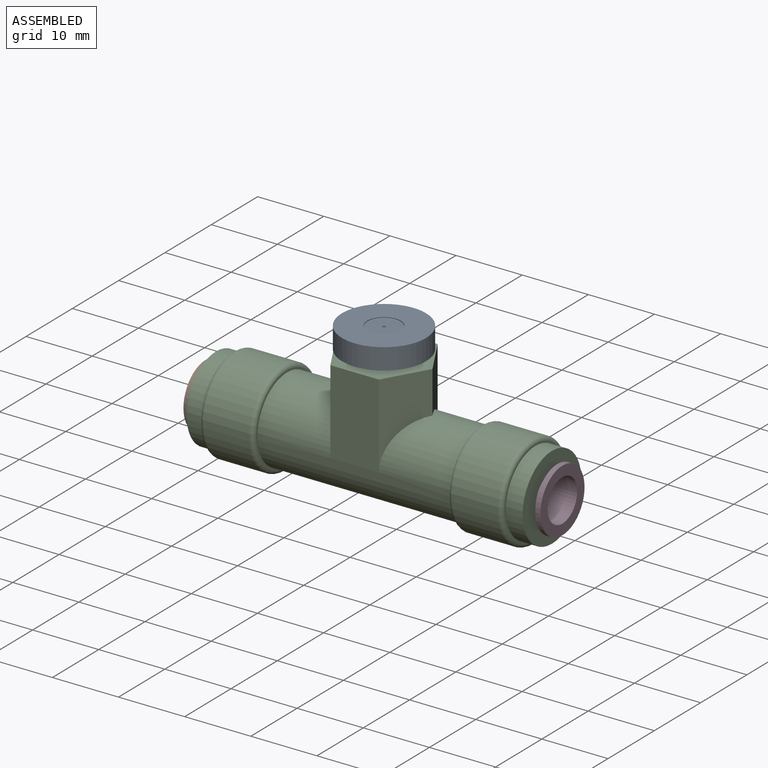
[diagram: assembled view]
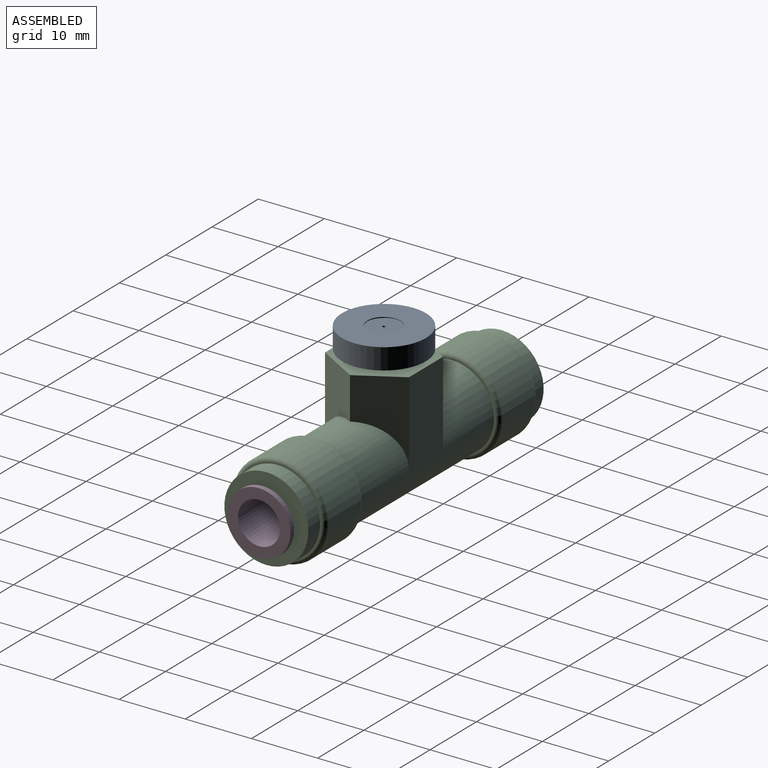
[diagram: assembled view, second angle]
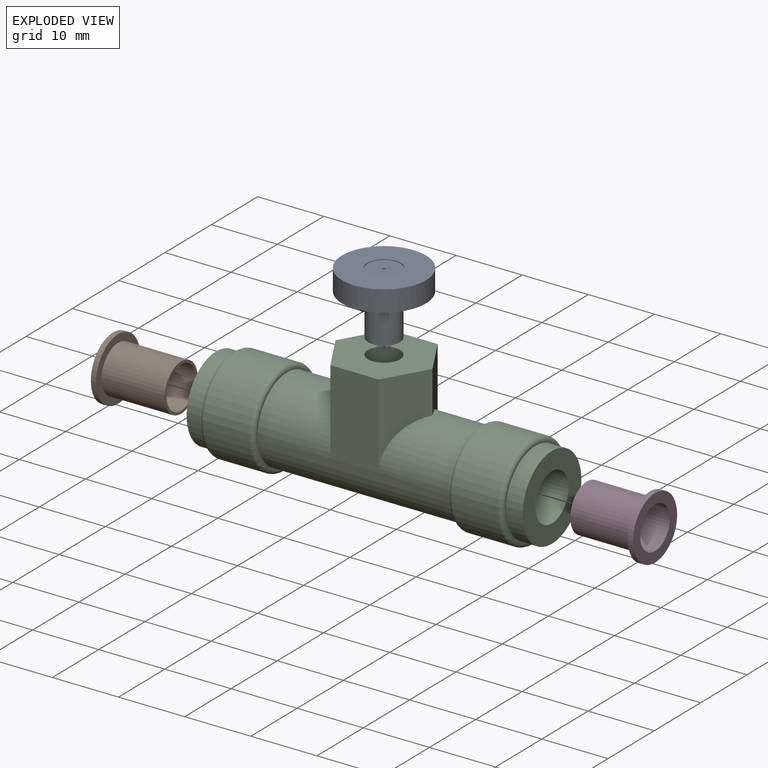
[diagram: exploded view]
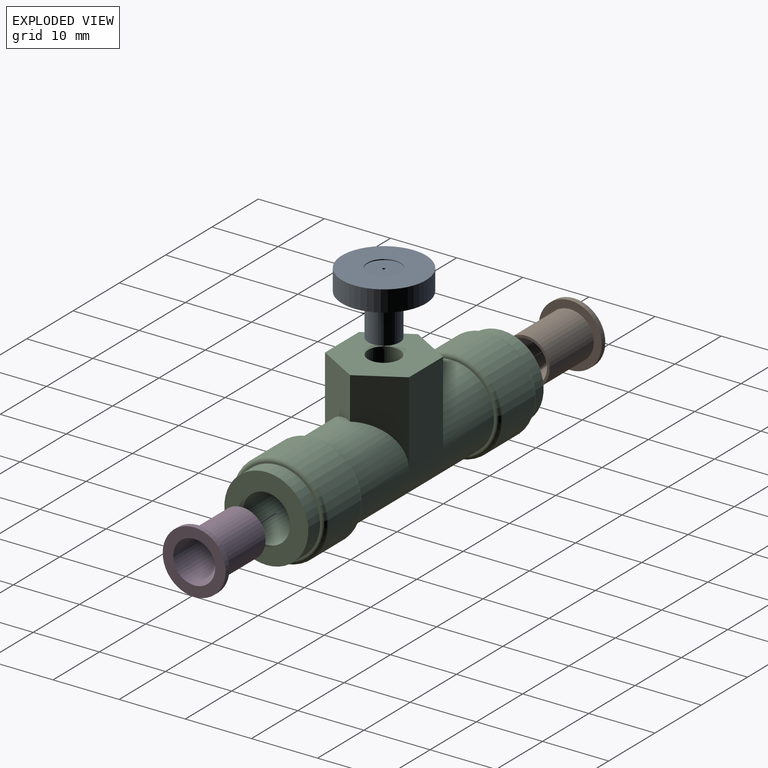
[diagram: exploded view, second angle]
ASSEMBLY  parts=4 mates=3
PART A: 8 faces, bbox 12.7x12.7x9.5 mm
  f0: cylinder r=0.23mm len=9.4mm, axis (0,0,1), area 13.5mm2, adj f2,f7
  f1: cylinder r=2.41mm len=6.35mm, axis (0,0,1), area 96.3mm2, adj f2,f5
  f2: plane 4.83x4.83mm, normal (0,0,-1), area 18.1mm2, adj f0,f1
  f3: cylinder r=6.35mm len=12.7mm, axis (0,0,-1), area 126.7mm2, adj f4,f5
  f4: plane 12.7x12.7mm, normal (0,0,1), area 106.4mm2, adj f3,f6
  f5: plane 12.7x12.7mm, normal (0,0,-1), area 108.4mm2, adj f1,f3
  f6: cylinder r=2.54mm len=5.08mm, axis (0,0,1), area 2mm2, adj f4,f7
  f7: plane 5.08x5.08mm, normal (0,0,1), area 20.1mm2, adj f0,f6
PART B: 6 faces, bbox 10.3x9.5x9.5 mm
  f0: cylinder r=3.17mm len=10.32mm, axis (-1,0,0), area 205.8mm2, adj f2,f4
  f1: cylinder r=3.57mm len=9.53mm, axis (-1,0,0), area 213.8mm2, adj f2,f5
  f2: plane 7.14x7.14mm, normal (1,0,0), area 8.4mm2, adj f0,f1
  f3: cylinder r=4.76mm len=9.53mm, axis (1,0,0), area 23.8mm2, adj f4,f5
  f4: plane 9.53x9.53mm, normal (-1,0,0), area 39.6mm2, adj f0,f3
  f5: plane 9.53x9.53mm, normal (1,0,0), area 31.2mm2, adj f1,f3
PART C: 24 faces, bbox 50.8x15.6x20.5 mm
  f0: cylinder r=3.57mm len=50.8mm, axis (-1,0,0), area 1120.5mm2, adj f4,f5,f13
  f1: cylinder r=6.35mm len=12.7mm, axis (-1,0,0), area 101mm2, adj f4,f19
  f2: cylinder r=6.35mm len=12.7mm, axis (-1,0,0), area 101mm2, adj f5,f14
  f3: cylinder r=6.35mm len=29.38mm, axis (-1,0,0), area 972.7mm2, adj f7,f8,f9,f10,f11,f12,f15,f20
  f4: plane 12.7x12.7mm, normal (1,0,0), area 86.6mm2, adj f0,f1
  f5: plane 12.7x12.7mm, normal (-1,0,0), area 86.6mm2, adj f0,f2
  f6: plane 14.66x12.7mm, normal (0,0,1), area 121.4mm2, adj f7,f8,f9,f10,f11,f12,f13
  f7: plane 12.7x6.35mm, normal (0.87,0.5,0), area 56.6mm2, adj f3,f6,f8,f12
  f8: plane 12.7x6.35mm, normal (0.87,-0.5,0), area 56.6mm2, adj f3,f6,f7,f9
  f9: plane 12.7x7.33mm, normal (0,-1,0), area 93.1mm2, adj f3,f6,f8,f10
  f10: plane 12.7x6.35mm, normal (-0.87,-0.5,0), area 56.6mm2, adj f3,f6,f9,f11
  f11: plane 12.7x6.35mm, normal (-0.87,0.5,0), area 56.6mm2, adj f3,f6,f10,f12
  f12: plane 12.7x7.33mm, normal (0,1,0), area 93.1mm2, adj f3,f6,f7,f11
  f13: cylinder r=2.41mm len=10.07mm, axis (0,0,-1), area 145.2mm2, adj f0,f6
  f14: plane 13.14x13.14mm, normal (-1,0,0), area 8.9mm2, adj f2,f18
  f15: plane 13.14x13.14mm, normal (1,0,0), area 8.9mm2, adj f3,f16
  f16: torus R=6.57mm, axis (1,0,0), area 43.1mm2, adj f15,f17
  f17: cylinder r=7.2mm len=14.39mm, axis (1,0,0), area 313.1mm2, adj f16,f18
  f18: torus R=6.57mm, axis (1,0,0), area 43.1mm2, adj f14,f17
  f19: plane 13.14x13.14mm, normal (1,0,0), area 8.9mm2, adj f1,f23
  f20: plane 13.14x13.14mm, normal (-1,0,0), area 8.9mm2, adj f3,f21
  f21: torus R=6.57mm, axis (-1,0,0), area 43.1mm2, adj f20,f22
  f22: cylinder r=7.2mm len=14.39mm, axis (-1,0,0), area 313.1mm2, adj f21,f23
  f23: torus R=6.57mm, axis (-1,0,0), area 43.1mm2, adj f19,f22
PART D: 6 faces, bbox 10.3x9.5x9.5 mm
  f0: cylinder r=3.17mm len=10.32mm, axis (1,0,0), area 205.8mm2, adj f2,f4
  f1: cylinder r=3.57mm len=9.53mm, axis (1,0,0), area 213.8mm2, adj f2,f5
  f2: plane 7.14x7.14mm, normal (-1,0,0), area 8.4mm2, adj f0,f1
  f3: cylinder r=4.76mm len=9.53mm, axis (-1,0,0), area 23.8mm2, adj f4,f5
  f4: plane 9.53x9.53mm, normal (1,0,0), area 39.6mm2, adj f0,f3
  f5: plane 9.53x9.53mm, normal (-1,0,0), area 31.2mm2, adj f1,f3
PLACE A t=(14.97,14.51,-2.31)mm
PLACE B t=(14.18,14.51,-3.1)mm
PLACE C t=(14.97,14.51,-3.1)mm
PLACE D t=(15.76,14.51,-3.1)mm
MATE fastened C.f1 <-> B.f0  axis (-1,0,0) through (-10.43,14.51,-3.1)mm
MATE fastened C.f1 <-> D.f0  axis (1,0,0) through (40.37,14.51,-3.1)mm
MATE fastened C.f13 <-> A.f0  axis (0,0,1) through (14.97,14.51,9.6)mm
